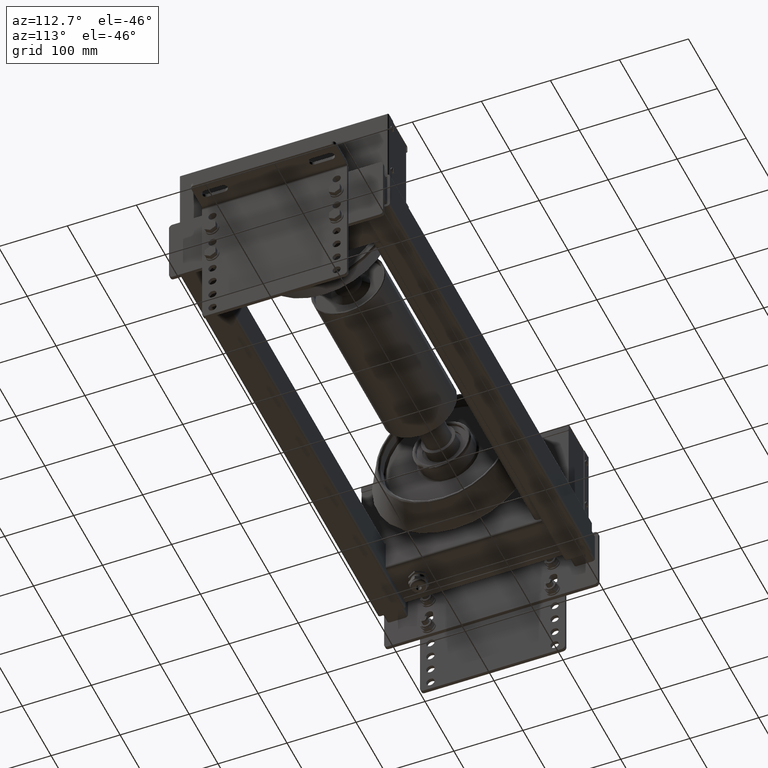
[diagram: clean part render]
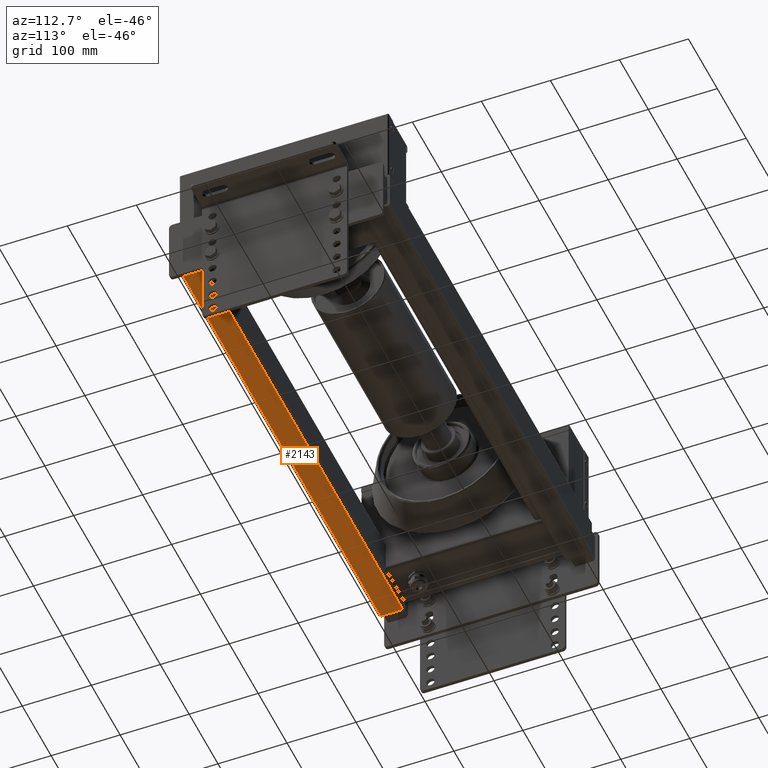
[diagram: same view with one face highlighted and labeled with its STEP entity id]
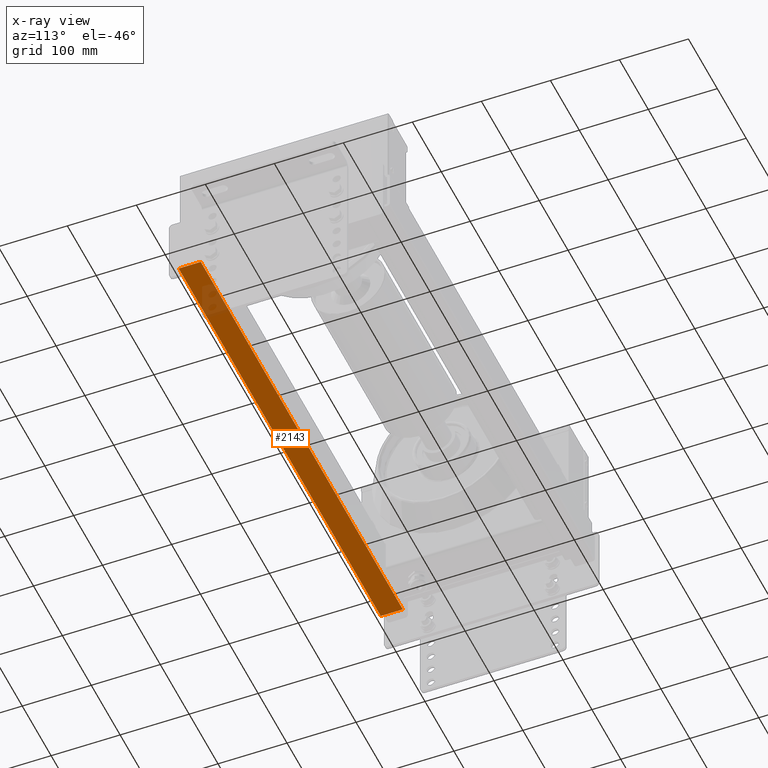
[diagram: x-ray of the same camera — body ghosted, the highlighted face saturated]
A machine part, auxiliary view. The second image highlights one B-rep face of the part: STEP entity #2143.
The next image is the same camera in x-ray: the body ghosted, the highlighted face saturated — about 6% of this face is hidden behind the body in this view.
In plain terms, the highlighted planar face has unit normal (-0, -0, -1).
Its self-contained STEP definition (entity closure, byte-faithful):
#2085=CARTESIAN_POINT('',(16.0,-29.999999999999886,295.0));
#2086=VERTEX_POINT('',#2085);
#2094=CARTESIAN_POINT('',(16.0,-29.999999999999886,-405.0));
#2095=VERTEX_POINT('',#2094);
#2096=CARTESIAN_POINT('',(16.0,-29.999999999999886,-405.0));
#2097=DIRECTION('',(0.0,0.0,1.0));
#2098=VECTOR('',#2097,700.0);
#2099=LINE('',#2096,#2098);
#2100=EDGE_CURVE('',#2095,#2086,#2099,.T.);
#2113=CARTESIAN_POINT('',(16.0,-29.999999999999886,-405.0));
#2114=DIRECTION('',(0.0,-1.0,0.0));
#2115=DIRECTION('',(0.0,0.0,-1.0));
#2116=AXIS2_PLACEMENT_3D('',#2113,#2114,#2115);
#2117=PLANE('',#2116);
#2118=CARTESIAN_POINT('',(-16.0,-29.999999999999886,295.0));
#2119=VERTEX_POINT('',#2118);
#2120=CARTESIAN_POINT('',(16.0,-29.999999999999886,295.0));
#2121=DIRECTION('',(-1.0,0.0,0.0));
#2122=VECTOR('',#2121,32.0);
#2123=LINE('',#2120,#2122);
#2124=EDGE_CURVE('',#2086,#2119,#2123,.T.);
#2125=ORIENTED_EDGE('',*,*,#2124,.T.);
#2126=CARTESIAN_POINT('',(-16.0,-29.999999999999886,-405.0));
#2127=VERTEX_POINT('',#2126);
#2128=CARTESIAN_POINT('',(-16.0,-29.999999999999886,-405.0));
#2129=DIRECTION('',(0.0,0.0,1.0));
#2130=VECTOR('',#2129,700.0);
#2131=LINE('',#2128,#2130);
#2132=EDGE_CURVE('',#2127,#2119,#2131,.T.);
#2133=ORIENTED_EDGE('',*,*,#2132,.F.);
#2134=CARTESIAN_POINT('',(16.0,-29.999999999999886,-405.0));
#2135=DIRECTION('',(-1.0,0.0,0.0));
#2136=VECTOR('',#2135,32.0);
#2137=LINE('',#2134,#2136);
#2138=EDGE_CURVE('',#2095,#2127,#2137,.T.);
#2139=ORIENTED_EDGE('',*,*,#2138,.F.);
#2140=ORIENTED_EDGE('',*,*,#2100,.T.);
#2141=EDGE_LOOP('',(#2125,#2133,#2139,#2140));
#2142=FACE_OUTER_BOUND('',#2141,.T.);
#2143=ADVANCED_FACE('',(#2142),#2117,.T.);